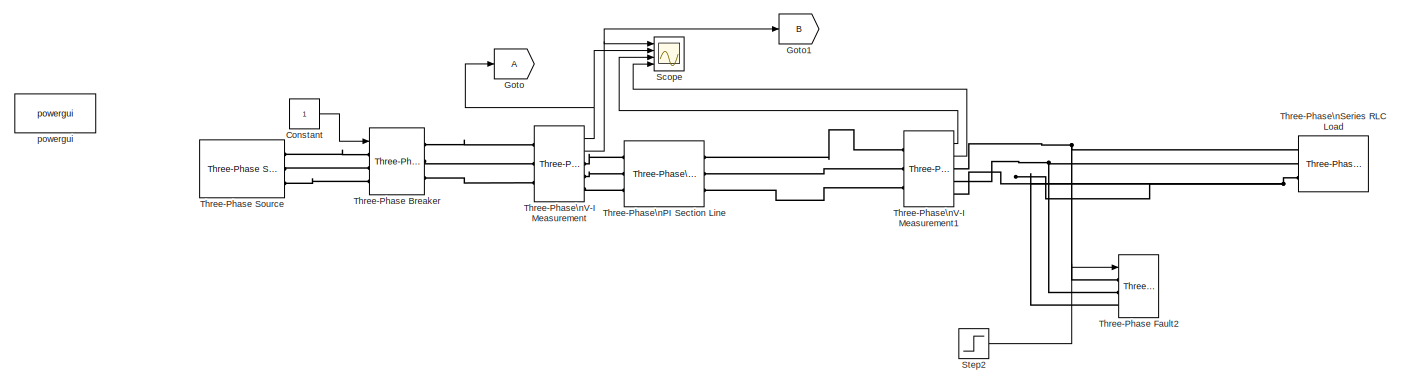
[diagram: root canvas - part 1/2, full width, top band]
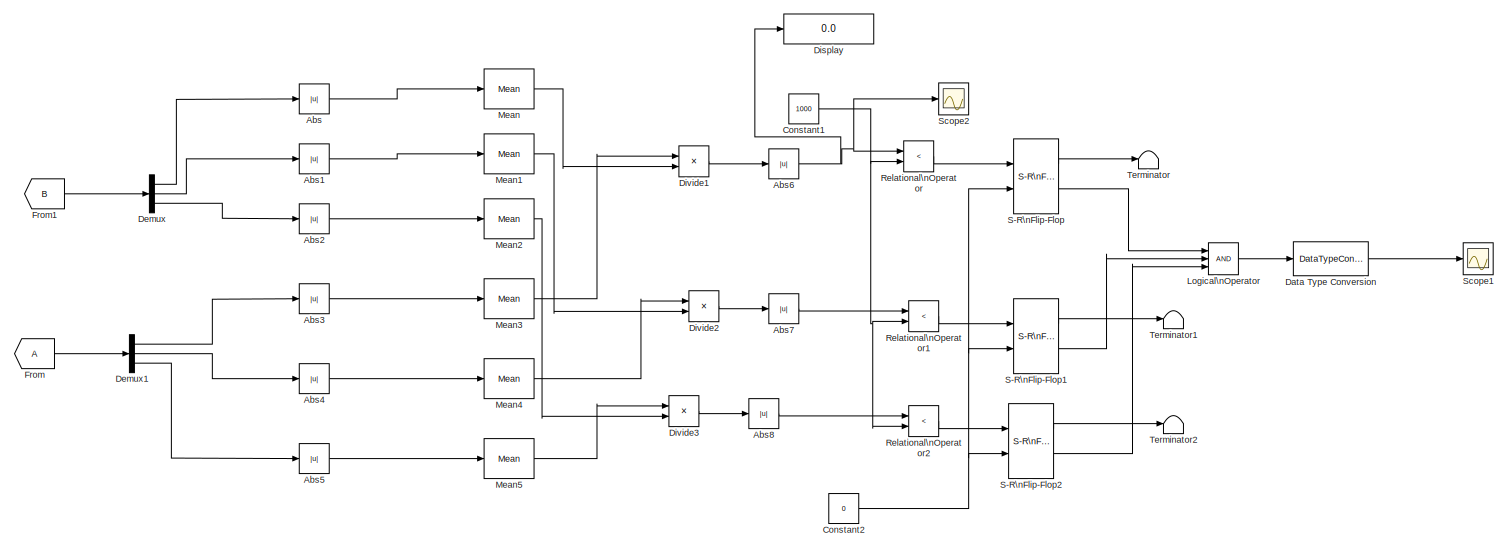
[diagram: root canvas - part 2/2, full width, bottom band]
MODEL ran
KIND model
BLOCK [Abs] Abs
  SID = 1
  SaturateOnIntegerOverflow = off
BLOCK [Abs] Abs1
  SID = 2
  SaturateOnIntegerOverflow = off
BLOCK [Abs] Abs2
  SID = 3
  SaturateOnIntegerOverflow = off
BLOCK [Abs] Abs3
  SID = 4
  SaturateOnIntegerOverflow = off
BLOCK [Abs] Abs4
  SID = 5
  SaturateOnIntegerOverflow = off
BLOCK [Abs] Abs5
  SID = 6
  SaturateOnIntegerOverflow = off
BLOCK [Abs] Abs6
  SID = 7
  SaturateOnIntegerOverflow = off
BLOCK [Abs] Abs7
  SID = 8
  SaturateOnIntegerOverflow = off
BLOCK [Abs] Abs8
  SID = 9
  SaturateOnIntegerOverflow = off
BLOCK [Constant] Constant
  SID = 10
BLOCK [Constant] Constant1
  SID = 11
  Value = 1000
BLOCK [Constant] Constant2
  OutDataTypeStr = boolean
  SID = 12
  Value = 0
BLOCK [DataTypeConversion] Data Type Conversion
  OutDataTypeStr = double
  RndMeth = Floor
  SID = 13
  SaturateOnIntegerOverflow = off
BLOCK [Demux] Demux
  Outputs = 3
  Ports = [1, 3]
  SID = 14
BLOCK [Demux] Demux1
  Outputs = 3
  Ports = [1, 3]
  SID = 15
BLOCK [Display] Display
  Decimation = 1
  Ports = [1]
  SID = 16
BLOCK [Product] Divide1
  Inputs = */
  Ports = [2, 1]
  SID = 17
BLOCK [Product] Divide2
  Inputs = */
  Ports = [2, 1]
  SID = 18
BLOCK [Product] Divide3
  Inputs = */
  Ports = [2, 1]
  SID = 19
BLOCK [From] From
  SID = 20
BLOCK [From] From1
  GotoTag = B
  SID = 21
BLOCK [Goto] Goto
  SID = 22
BLOCK [Goto] Goto1
  GotoTag = B
  SID = 23
BLOCK [Logic] Logical\nOperator
  AllPortsSameDT = off
  Inputs = 3
  OutDataTypeStr = boolean
  Ports = [3, 1]
  SID = 24
BLOCK [Reference] Mean  REF=spsMeanLib/Mean
  Freq = 60
  Ports = [1, 1]
  RTWMemSecDataConstants = Inherit from model
  RTWMemSecDataInternal = Inherit from model
  RTWMemSecDataParameters = Inherit from model
  RTWMemSecFuncExecute = Inherit from model
  RTWMemSecFuncInitTerm = Inherit from model
  SID = 25
  SourceBlock = spsMeanLib/Mean
  SourceProductBaseCode = PS
  SourceType = Mean
  Ts = 0
  Vinit = 0
BLOCK [Reference] Mean1  REF=spsMeanLib/Mean
  Freq = 60
  Ports = [1, 1]
  RTWMemSecDataConstants = Inherit from model
  RTWMemSecDataInternal = Inherit from model
  RTWMemSecDataParameters = Inherit from model
  RTWMemSecFuncExecute = Inherit from model
  RTWMemSecFuncInitTerm = Inherit from model
  SID = 26
  SourceBlock = spsMeanLib/Mean
  SourceProductBaseCode = PS
  SourceType = Mean
  Ts = 0
  Vinit = 0
BLOCK [Reference] Mean2  REF=spsMeanLib/Mean
  Freq = 60
  Ports = [1, 1]
  RTWMemSecDataConstants = Inherit from model
  RTWMemSecDataInternal = Inherit from model
  RTWMemSecDataParameters = Inherit from model
  RTWMemSecFuncExecute = Inherit from model
  RTWMemSecFuncInitTerm = Inherit from model
  SID = 27
  SourceBlock = spsMeanLib/Mean
  SourceProductBaseCode = PS
  SourceType = Mean
  Ts = 0
  Vinit = 0
BLOCK [Reference] Mean3  REF=spsMeanLib/Mean
  Freq = 60
  Ports = [1, 1]
  RTWMemSecDataConstants = Inherit from model
  RTWMemSecDataInternal = Inherit from model
  RTWMemSecDataParameters = Inherit from model
  RTWMemSecFuncExecute = Inherit from model
  RTWMemSecFuncInitTerm = Inherit from model
  SID = 28
  SourceBlock = spsMeanLib/Mean
  SourceProductBaseCode = PS
  SourceType = Mean
  Ts = 0
  Vinit = 0
BLOCK [Reference] Mean4  REF=spsMeanLib/Mean
  Freq = 60
  Ports = [1, 1]
  RTWMemSecDataConstants = Inherit from model
  RTWMemSecDataInternal = Inherit from model
  RTWMemSecDataParameters = Inherit from model
  RTWMemSecFuncExecute = Inherit from model
  RTWMemSecFuncInitTerm = Inherit from model
  SID = 29
  SourceBlock = spsMeanLib/Mean
  SourceProductBaseCode = PS
  SourceType = Mean
  Ts = 0
  Vinit = 0
BLOCK [Reference] Mean5  REF=spsMeanLib/Mean
  Freq = 60
  Ports = [1, 1]
  RTWMemSecDataConstants = Inherit from model
  RTWMemSecDataInternal = Inherit from model
  RTWMemSecDataParameters = Inherit from model
  RTWMemSecFuncExecute = Inherit from model
  RTWMemSecFuncInitTerm = Inherit from model
  SID = 30
  SourceBlock = spsMeanLib/Mean
  SourceProductBaseCode = PS
  SourceType = Mean
  Ts = 0
  Vinit = 0
BLOCK [RelationalOperator] Relational\nOperator
  InputSameDT = off
  Operator = <
  OutDataTypeStr = boolean
  Ports = [2, 1]
  RndMeth = Simplest
  SID = 31
BLOCK [RelationalOperator] Relational\nOperator1
  InputSameDT = off
  Operator = <
  OutDataTypeStr = boolean
  Ports = [2, 1]
  RndMeth = Simplest
  SID = 32
BLOCK [RelationalOperator] Relational\nOperator2
  InputSameDT = off
  Operator = <
  OutDataTypeStr = boolean
  Ports = [2, 1]
  RndMeth = Simplest
  SID = 33
BLOCK [Reference] S-R\nFlip-Flop  REF=simulink_extras/Flip Flops/S-R\nFlip-Flop
  Ports = [2, 2]
  RTWMemSecDataConstants = Inherit from model
  RTWMemSecDataInternal = Inherit from model
  RTWMemSecDataParameters = Inherit from model
  RTWMemSecFuncExecute = Inherit from model
  RTWMemSecFuncInitTerm = Inherit from model
  SID = 34
  SourceBlock = simulink_extras/Flip Flops/S-R\nFlip-Flop
  SourceProductBaseCode = SL
  SourceType = SRFlipFlop
  initial_condition = 0
BLOCK [Reference] S-R\nFlip-Flop1  REF=simulink_extras/Flip Flops/S-R\nFlip-Flop
  Ports = [2, 2]
  RTWMemSecDataConstants = Inherit from model
  RTWMemSecDataInternal = Inherit from model
  RTWMemSecDataParameters = Inherit from model
  RTWMemSecFuncExecute = Inherit from model
  RTWMemSecFuncInitTerm = Inherit from model
  SID = 35
  SourceBlock = simulink_extras/Flip Flops/S-R\nFlip-Flop
  SourceProductBaseCode = SL
  SourceType = SRFlipFlop
  initial_condition = 0
BLOCK [Reference] S-R\nFlip-Flop2  REF=simulink_extras/Flip Flops/S-R\nFlip-Flop
  Ports = [2, 2]
  RTWMemSecDataConstants = Inherit from model
  RTWMemSecDataInternal = Inherit from model
  RTWMemSecDataParameters = Inherit from model
  RTWMemSecFuncExecute = Inherit from model
  RTWMemSecFuncInitTerm = Inherit from model
  SID = 36
  SourceBlock = simulink_extras/Flip Flops/S-R\nFlip-Flop
  SourceProductBaseCode = SL
  SourceType = SRFlipFlop
  initial_condition = 0
BLOCK [Scope] Scope
  Floating = off
  NumInputPorts = 4
  Ports = [4]
  SID = 37
  ScopeSpecificationString = Simulink.scopes.TimeScopeBlockCfg('CurrentConfiguration', extmgr.ConfigurationSet(extmgr.Configuration('Core','General UI',true),extmgr.Configuration('Core','Source UI',true),extmgr.Configuration('Sources','WiredSimulink',true),extmgr.Configuration('Visuals','Time Domain',true,'SerializedDisplays',{struct('MinYLimReal','-353.47567','MaxYLimReal','382.96072','YLabelReal','','MinYLimMag',' 0.00000',...<+3887ch>
BLOCK [Scope] Scope1
  Floating = off
  NumInputPorts = 1
  Ports = [1]
  SID = 38
  ScopeSpecificationString = Simulink.scopes.TimeScopeBlockCfg('CurrentConfiguration', extmgr.ConfigurationSet(extmgr.Configuration('Core','General UI',true),extmgr.Configuration('Core','Source UI',true),extmgr.Configuration('Sources','WiredSimulink',true,'DataLoggingVariableName','ScopeData1'),extmgr.Configuration('Visuals','Time Domain',true,'SerializedDisplays',{struct('MinYLimReal','-0.125','MaxYLimReal','1.125','YLabelRe...<+1367ch>
BLOCK [Scope] Scope2
  Floating = off
  NumInputPorts = 1
  Ports = [1]
  SID = 39
  ScopeSpecificationString = Simulink.scopes.TimeScopeBlockCfg('CurrentConfiguration', extmgr.ConfigurationSet(extmgr.Configuration('Core','General UI',true),extmgr.Configuration('Core','Source UI',true),extmgr.Configuration('Sources','WiredSimulink',true,'DataLoggingVariableName','ScopeData2'),extmgr.Configuration('Visuals','Time Domain',true,'SerializedDisplays',{struct('MinYLimReal','-528.26083','MaxYLimReal','5141.49527',...<+1459ch>
BLOCK [Step] Step2
  SID = 40
  SampleTime = 0
BLOCK [Terminator] Terminator
  SID = 41
BLOCK [Terminator] Terminator1
  SID = 42
BLOCK [Terminator] Terminator2
  SID = 43
BLOCK [Reference] Three-Phase Breaker  REF=spsThreePhaseBreakerLib/Three-Phase Breaker
  BreakerResistance = 0.001
  External = on
  InitialState = closed
  Measurements = None
  Ports = [1, 0, 0, 0, 0, 3, 3]
  RTWMemSecDataConstants = Inherit from model
  RTWMemSecDataInternal = Inherit from model
  RTWMemSecDataParameters = Inherit from model
  RTWMemSecFuncExecute = Inherit from model
  RTWMemSecFuncInitTerm = Inherit from model
  SID = 48
  SnubberCapacitance = inf
  SnubberResistance = 1e6
  SourceBlock = spsThreePhaseBreakerLib/Three-Phase Breaker
  SourceProductBaseCode = PS
  SourceType = Three-Phase Breaker
  SwitchA = on
  SwitchB = on
  SwitchC = on
  SwitchTimes = [1/60  5/60]
BLOCK [Reference] Three-Phase Fault2  REF=spsThreePhaseFaultLib/Three-Phase Fault
  External = on
  FaultA = on
  FaultB = on
  FaultC = on
  FaultResistance = 12
  GroundFault = on
  GroundResistance = 0.01
  InitialStates = 0
  Measurements = None
  Ports = [1, 0, 0, 0, 0, 3]
  RTWMemSecDataConstants = Inherit from model
  RTWMemSecDataInternal = Inherit from model
  RTWMemSecDataParameters = Inherit from model
  RTWMemSecFuncExecute = Inherit from model
  RTWMemSecFuncInitTerm = Inherit from model
  SID = 49
  SnubberCapacitance = inf
  SnubberResistance = 1e6
  SourceBlock = spsThreePhaseFaultLib/Three-Phase Fault
  SourceProductBaseCode = PS
  SourceType = Three-Phase Fault
  SwitchStatus = NaN
  SwitchTimes = [1/60  5/60]
BLOCK [Reference] Three-Phase Source  REF=spsThreePhaseSourceLib/Three-Phase Source
  BaseVoltage = 25e3
  BusType = swing
  Frequency = 50
  Inductance = 16.58e-3
  InternalConnection = Yg
  NonIdealSource = on
  PhaseAngle = 0
  PhaseAngles_phases = [0 -120 +120]
  Ports = [0, 0, 0, 0, 0, 0, 3]
  Pref = 10e3
  Prefabc = [10e3, 10e3, 10e3]
  Qmax = inf
  Qmin = -inf
  Qref = 0
  Qrefabc = [0, 0, 0]
  RTWMemSecDataConstants = Inherit from model
  RTWMemSecDataInternal = Inherit from model
  RTWMemSecDataParameters = Inherit from model
  RTWMemSecFuncExecute = Inherit from model
  RTWMemSecFuncInitTerm = Inherit from model
  Resistance = 0.8929
  SID = 50
  ShortCircuitLevel = 100e6
  SourceBlock = spsThreePhaseSourceLib/Three-Phase Source
  SourceProductBaseCode = PS
  SourceType = Three-Phase Source
  SpecifyImpedance = on
  Voltage = 11e3
  VoltagePhases = off
  Voltage_phases = [25e3 25e3 25e3]/sqrt(3)
  XRratio = 7
BLOCK [Reference] Three-Phase\nPI Section Line  REF=spsThreePhasePISectionLineLib/Three-Phase\nPI Section Line
  AttributesFormatString = \\n
  Capacitances = [12.74e-9 7.751e-9]
  Frequency = 50
  Inductances = [ 0.9337e-3  4.1264e-3]
  LConnTagsString = a|b|c
  Length = 100
  Ports = [0, 0, 0, 0, 0, 3, 3]
  RConnTagsString = A|B|C
  Resistances = [ 0.01273 0.3864]
  SID = 44
  SourceBlock = spsThreePhasePISectionLineLib/Three-Phase\nPI Section Line
  SourceProductBaseCode = PS
  SourceType = Three-Phase PI Section Line
BLOCK [Reference] Three-Phase\nSeries RLC Load  REF=spsThreePhaseSeriesRLCLoadLib/Three-Phase\nSeries RLC Load
  ActivePower = 20000
  AttributesFormatString = \\n
  CapacitivePower = 0
  Configuration = Y (grounded)
  InductivePower = 0
  LConnTagsString = A|B|C
  LoadType = constant Z
  Measurements = None
  NominalFrequency = 50
  NominalVoltage = 11e3
  Pabc = [10e3 9e3 11e3]
  Pabcp = [10e3 9e3 11e3]
  Ports = [0, 0, 0, 0, 0, 3]
  QCabc = [100 90 110]
  QCabcp = [100 90 110]
  QLabc = [100 90 110]
  QLabcp = [100 90 110]
  SID = 45
  SourceBlock = spsThreePhaseSeriesRLCLoadLib/Three-Phase\nSeries RLC Load
  SourceProductBaseCode = PS
  SourceType = Three-Phase Series RLC Load
  UnbalancedPower = off
  Vabc = [1e3 1e3 1e3]
  Vabcp = [1e3 1e3 1e3]
BLOCK [Reference] Three-Phase\nV-I Measurement  REF=spsThreePhaseVIMeasurementLib/Three-Phase\nV-I Measurement
  CurrentMeasurement = yes
  Ipu = off
  LabelI = Iabc
  LabelV = Vabc
  OutputType = Complex
  PSBequivalent = 0
  Pbase = 100e6
  PhasorSimulation = off
  Ports = [0, 2, 0, 0, 0, 3, 3]
  RTWMemSecDataConstants = Inherit from model
  RTWMemSecDataInternal = Inherit from model
  RTWMemSecDataParameters = Inherit from model
  RTWMemSecFuncExecute = Inherit from model
  RTWMemSecFuncInitTerm = Inherit from model
  SID = 46
  SetLabelI = off
  SetLabelV = off
  SourceBlock = spsThreePhaseVIMeasurementLib/Three-Phase\nV-I Measurement
  SourceProductBaseCode = PS
  SourceType = Three-Phase VI Measurement
  Vbase = 500e3
  VoltageMeasurement = phase-to-phase
  Vpu = off
  VpuLL = off
BLOCK [Reference] Three-Phase\nV-I Measurement1  REF=spsThreePhaseVIMeasurementLib/Three-Phase\nV-I Measurement
  CurrentMeasurement = yes
  Ipu = off
  LabelI = Iabc
  LabelV = Vabc
  OutputType = Complex
  PSBequivalent = 0
  Pbase = 100e6
  PhasorSimulation = off
  Ports = [0, 2, 0, 0, 0, 3, 3]
  RTWMemSecDataConstants = Inherit from model
  RTWMemSecDataInternal = Inherit from model
  RTWMemSecDataParameters = Inherit from model
  RTWMemSecFuncExecute = Inherit from model
  RTWMemSecFuncInitTerm = Inherit from model
  SID = 47
  SetLabelI = off
  SetLabelV = off
  SourceBlock = spsThreePhaseVIMeasurementLib/Three-Phase\nV-I Measurement
  SourceProductBaseCode = PS
  SourceType = Three-Phase VI Measurement
  Vbase = 500e3
  VoltageMeasurement = phase-to-phase
  Vpu = off
  VpuLL = off
BLOCK [Reference] powergui  REF=spspowerguiLib/powergui
  AutomaticDiscreteSolvers = off
  ContinueOnMaxIteration = off
  CurrentSourceSwitches = off
  DisableRonSwitches = off
  DisableSnubberDevices = off
  DisableVfSwitches = off
  DisplayEquations = off
  DisplayStyle = 1
  EnableUseOfTLC = off
  ErrMax = 1e-4
  ExternalGateDelay = off
  Frange = [0:2:500]
  FreqAxis = off
  FunctionMessages = off
  HookPort = off
  Interpol = off
  Iterations = 50
  MaxFrequency = 1000
  NonlinearTolerance = 1e-4
  Pbase = 100e6
  Ports = []
  Priority = 1
  RTWMemSecDataConstants = Inherit from model
  RTWMemSecDataInternal = Inherit from model
  RTWMemSecDataParameters = Inherit from model
  RTWMemSecFuncExecute = Inherit from model
  RTWMemSecFuncInitTerm = Inherit from model
  ResistiveCurrentMeasurement = off
  RestoreLinks = warning
  RmsSteady = 1
  SID = 51
  SPID = on
  SampleTime = 50e-6
  ShowGrid = off
  SolverType = Tustin/Backward Euler (TBE)
  SourceBlock = spspowerguiLib/powergui
  SourceProductBaseCode = PS
  SourceType = PSB option menu block
  StartTime = 0.0
  SwTol = 0
  Ts = 100
  UnitsV = kV
  UnitsW = MW
  Xlog = on
  Ylog = off
  ZoomFFT = off
  buscounter = 0
  cycles = 1
  display = off
  echomessages = off
  frequency = 60
  frequencyindice = 50
  frequencyindicesteady = 1
  fundamental = 60
  methode = off
  nMaxIteration = 100
  save = off
  structure = 0
  variable = ZData
  x0status = blocks
LINE Abs1:1 -> Mean1:1
LINE Abs2:1 -> Mean2:1
LINE Abs3:1 -> Mean3:1
LINE Abs4:1 -> Mean4:1
LINE Abs5:1 -> Mean5:1
NET Abs6:1 -> Display:1, Relational\nOperator:1, Scope2:1
LINE Abs7:1 -> Relational\nOperator1:1
LINE Abs8:1 -> Relational\nOperator2:1
LINE Abs:1 -> Mean:1
NET Constant1:1 -> Relational\nOperator1:2, Relational\nOperator2:2, Relational\nOperator:2
NET Constant2:1 -> S-R\nFlip-Flop1:2, S-R\nFlip-Flop2:2, S-R\nFlip-Flop:2
LINE Constant:1 -> Three-Phase Breaker:1
LINE Data Type Conversion:1 -> Scope1:1
LINE Demux1:1 -> Abs3:1
LINE Demux1:2 -> Abs4:1
LINE Demux1:3 -> Abs5:1
LINE Demux:1 -> Abs:1
LINE Demux:2 -> Abs1:1
LINE Demux:3 -> Abs2:1
LINE Divide1:1 -> Abs6:1
LINE Divide2:1 -> Abs7:1
LINE Divide3:1 -> Abs8:1
LINE From1:1 -> Demux:1
LINE From:1 -> Demux1:1
LINE Logical\nOperator:1 -> Data Type Conversion:1
LINE Mean1:1 -> Divide2:2
LINE Mean2:1 -> Divide3:2
LINE Mean3:1 -> Divide1:1
LINE Mean4:1 -> Divide2:1
LINE Mean5:1 -> Divide3:1
LINE Mean:1 -> Divide1:2
LINE Relational\nOperator1:1 -> S-R\nFlip-Flop1:1
LINE Relational\nOperator2:1 -> S-R\nFlip-Flop2:1
LINE Relational\nOperator:1 -> S-R\nFlip-Flop:1
LINE S-R\nFlip-Flop1:1 -> Terminator1:1
LINE S-R\nFlip-Flop1:2 -> Logical\nOperator:2
LINE S-R\nFlip-Flop2:1 -> Terminator2:1
LINE S-R\nFlip-Flop2:2 -> Logical\nOperator:3
LINE S-R\nFlip-Flop:1 -> Terminator:1
LINE S-R\nFlip-Flop:2 -> Logical\nOperator:1
LINE Step2:1 -> Three-Phase Fault2:1
LINE Three-Phase\nV-I Measurement1:1 -> Scope:3
LINE Three-Phase\nV-I Measurement1:2 -> Scope:4
NET Three-Phase\nV-I Measurement:1 -> Goto:1, Scope:2
NET Three-Phase\nV-I Measurement:2 -> Goto1:1, Scope:1
PLINE Three-Phase Breaker:LConn1 -- Three-Phase Source:RConn1
PLINE Three-Phase Breaker:LConn2 -- Three-Phase Source:RConn2
PLINE Three-Phase Breaker:LConn3 -- Three-Phase Source:RConn3
PLINE Three-Phase Breaker:RConn1 -- Three-Phase\nV-I Measurement:LConn1
PLINE Three-Phase Breaker:RConn2 -- Three-Phase\nV-I Measurement:LConn2
PLINE Three-Phase Breaker:RConn3 -- Three-Phase\nV-I Measurement:LConn3
PNET net1: Three-Phase Fault2:LConn1 -- Three-Phase\nSeries RLC Load:LConn1 -- Three-Phase\nV-I Measurement1:RConn1
PNET net2: Three-Phase Fault2:LConn2 -- Three-Phase\nSeries RLC Load:LConn2 -- Three-Phase\nV-I Measurement1:RConn2
PNET net3: Three-Phase Fault2:LConn3 -- Three-Phase\nSeries RLC Load:LConn3 -- Three-Phase\nV-I Measurement1:RConn3
PLINE Three-Phase\nPI Section Line:LConn1 -- Three-Phase\nV-I Measurement:RConn1
PLINE Three-Phase\nPI Section Line:LConn2 -- Three-Phase\nV-I Measurement:RConn2
PLINE Three-Phase\nPI Section Line:LConn3 -- Three-Phase\nV-I Measurement:RConn3
PLINE Three-Phase\nPI Section Line:RConn1 -- Three-Phase\nV-I Measurement1:LConn1
PLINE Three-Phase\nPI Section Line:RConn2 -- Three-Phase\nV-I Measurement1:LConn2
PLINE Three-Phase\nPI Section Line:RConn3 -- Three-Phase\nV-I Measurement1:LConn3
note: NET lines group one-source signal fan-out (src -> all destinations, sorted); 1:1 wires keep LINE; PNET lines group multi-terminal physical nets as a canonical sorted terminal list (undirected conserving connections); 2-terminal nets keep the pairwise PLINE form
